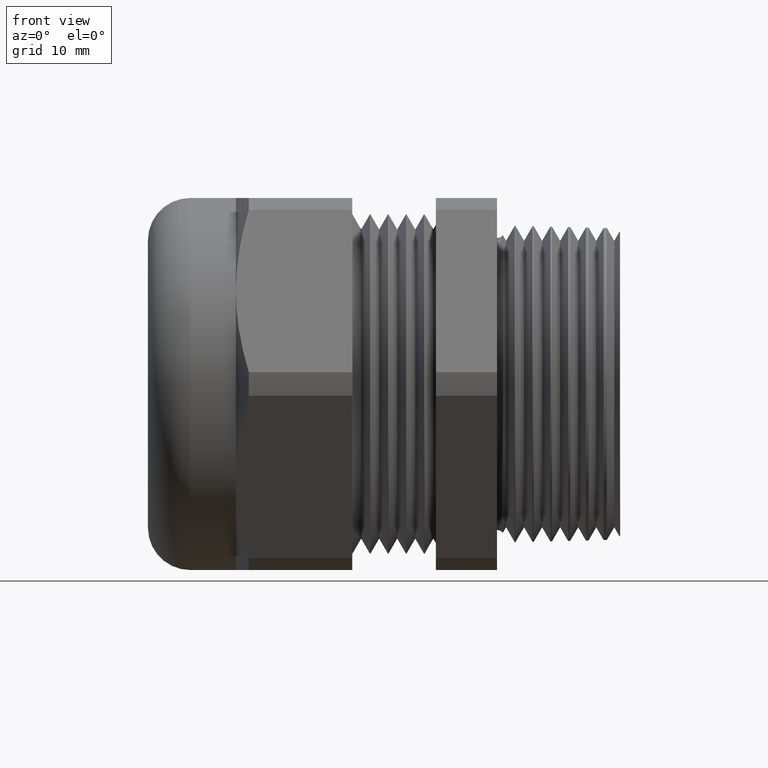
[diagram: clean part render]
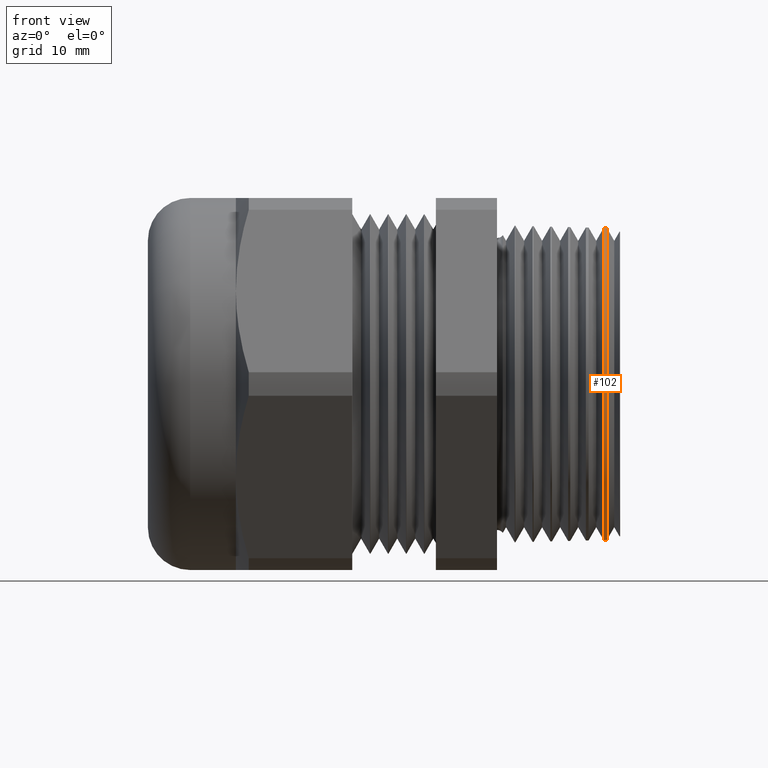
[diagram: same view with one face highlighted and labeled with its STEP entity id]
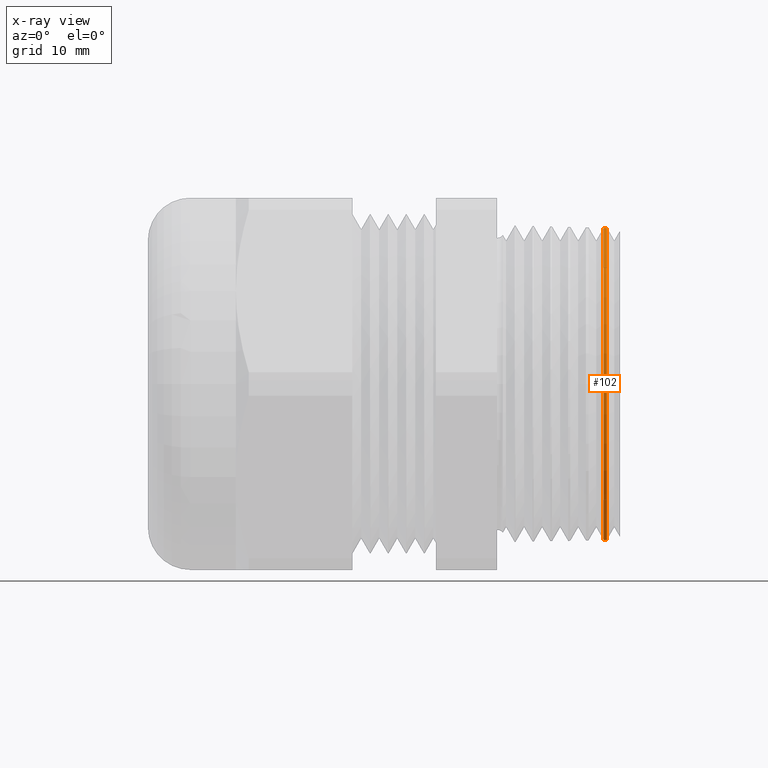
[diagram: x-ray of the same camera — body ghosted, the highlighted face saturated]
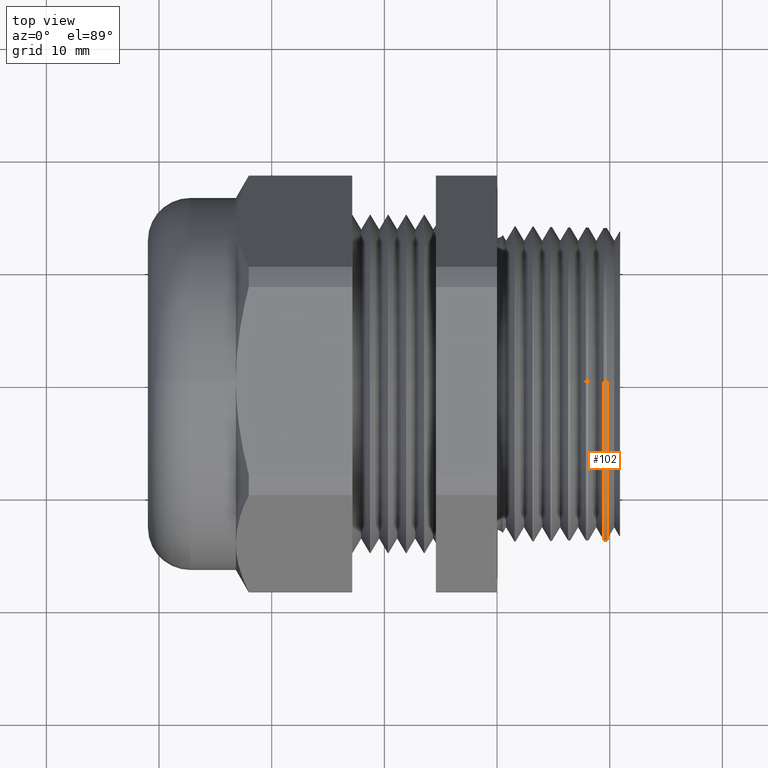
[diagram: same view with one face highlighted and labeled with its STEP entity id]
A machine part, front view. The second image highlights one B-rep face of the part: STEP entity #102.
The next image is the same camera in x-ray: the body ghosted, the highlighted face saturated — about 0% of this face is hidden behind the body in this view.
A second angle (top view) of the same face is appended — the face is thin or edge-on in the first view.
In plain terms, the highlighted conical surface has half-angle 1.5 deg.
Its self-contained STEP definition (entity closure, byte-faithful):
#14 = ORIENTED_EDGE ( 'NONE', *, *, #83, .F. ) ;
#15 = ORIENTED_EDGE ( 'NONE', *, *, #79, .T. ) ;
#17 = ORIENTED_EDGE ( 'NONE', *, *, #1146, .F. ) ;
#19 = ORIENTED_EDGE ( 'NONE', *, *, #20, .F. ) ;
#20 = EDGE_CURVE ( 'NONE', #693, #601, #1166, .T. ) ;
#79 = EDGE_CURVE ( 'NONE', #693, #701, #1262, .T. ) ;
#83 = EDGE_CURVE ( 'NONE', #606, #701, #1246, .T. ) ;
#102 = ADVANCED_FACE ( 'NONE', ( #1338 ), #1331, .T. ) ;
#103 = EDGE_LOOP ( 'NONE', ( #17, #19, #15, #14 ) ) ;
#601 = VERTEX_POINT ( 'NONE', #2119 ) ;
#606 = VERTEX_POINT ( 'NONE', #2111 ) ;
#693 = VERTEX_POINT ( 'NONE', #2316 ) ;
#701 = VERTEX_POINT ( 'NONE', #2300 ) ;
#1146 = EDGE_CURVE ( 'NONE', #601, #606, #3113, .T. ) ;
#1162 = DIRECTION ( 'NONE',  ( 0.0000000000000000000, 0.0000000000000000000, 1.000000000000000000 ) ) ;
#1163 = DIRECTION ( 'NONE',  ( 1.000000000000000000, 0.0000000000000000000, 0.0000000000000000000 ) ) ;
#1164 = CARTESIAN_POINT ( 'NONE',  ( 0.3838024984477899600, 0.0000000000000000000, 0.0000000000000000000 ) ) ;
#1165 = AXIS2_PLACEMENT_3D ( 'NONE', #1164, #1163, #1162 ) ;
#1166 = CIRCLE ( 'NONE', #1165, 0.5449497778775881400 ) ;
#1246 = CIRCLE ( 'NONE', #1306, 0.5452498287331283300 ) ;
#1252 = CARTESIAN_POINT ( 'NONE',  ( 0.3723440185639521600, 0.0000000000000000000, 0.0000000000000000000 ) ) ;
#1254 = DIRECTION ( 'NONE',  ( -0.9996573249755572600, 0.0000000000000000000, 0.02617694830787318000 ) ) ;
#1255 = VECTOR ( 'NONE', #1254, 39.37007874015748900 ) ;
#1256 = CARTESIAN_POINT ( 'NONE',  ( 0.4299999999999999400, 0.0000000000000000000, 0.5437400537252495800 ) ) ;
#1262 = LINE ( 'NONE', #1256, #1255 ) ;
#1304 = DIRECTION ( 'NONE',  ( 0.0000000000000000000, 0.0000000000000000000, -1.000000000000000000 ) ) ;
#1305 = DIRECTION ( 'NONE',  ( -1.000000000000000000, 0.0000000000000000000, 0.0000000000000000000 ) ) ;
#1306 = AXIS2_PLACEMENT_3D ( 'NONE', #1252, #1305, #1304 ) ;
#1328 = DIRECTION ( 'NONE',  ( 0.0000000000000000000, 0.0000000000000000000, 1.000000000000000000 ) ) ;
#1329 = DIRECTION ( 'NONE',  ( -1.000000000000000000, 0.0000000000000000000, 0.0000000000000000000 ) ) ;
#1330 = AXIS2_PLACEMENT_3D ( 'NONE', #1333, #1329, #1328 ) ;
#1331 = CONICAL_SURFACE ( 'NONE', #1330, 0.5437400537252495800, 0.02617993877991497300 ) ;
#1333 = CARTESIAN_POINT ( 'NONE',  ( 0.4299999999999999400, 0.0000000000000000000, 0.0000000000000000000 ) ) ;
#1338 = FACE_OUTER_BOUND ( 'NONE', #103, .T. ) ;
#2111 = CARTESIAN_POINT ( 'NONE',  ( 0.3723440185639521600, 6.677384574936682700E-017, -0.5452498287331284400 ) ) ;
#2119 = CARTESIAN_POINT ( 'NONE',  ( 0.3838024984477899600, 6.675547293337588800E-017, -0.5449497778775881400 ) ) ;
#2300 = CARTESIAN_POINT ( 'NONE',  ( 0.3723440185639521600, 0.0000000000000000000, 0.5452498287331284400 ) ) ;
#2316 = CARTESIAN_POINT ( 'NONE',  ( 0.3838024984477899600, 0.0000000000000000000, 0.5449497778775881400 ) ) ;
#3106 = DIRECTION ( 'NONE',  ( -0.9996573249755572600, 3.205751595668261700E-018, -0.02617694830787318000 ) ) ;
#3107 = VECTOR ( 'NONE', #3106, 39.37007874015748900 ) ;
#3108 = CARTESIAN_POINT ( 'NONE',  ( 0.4299999999999999400, 6.658895163628368100E-017, -0.5437400537252495800 ) ) ;
#3113 = LINE ( 'NONE', #3108, #3107 ) ;